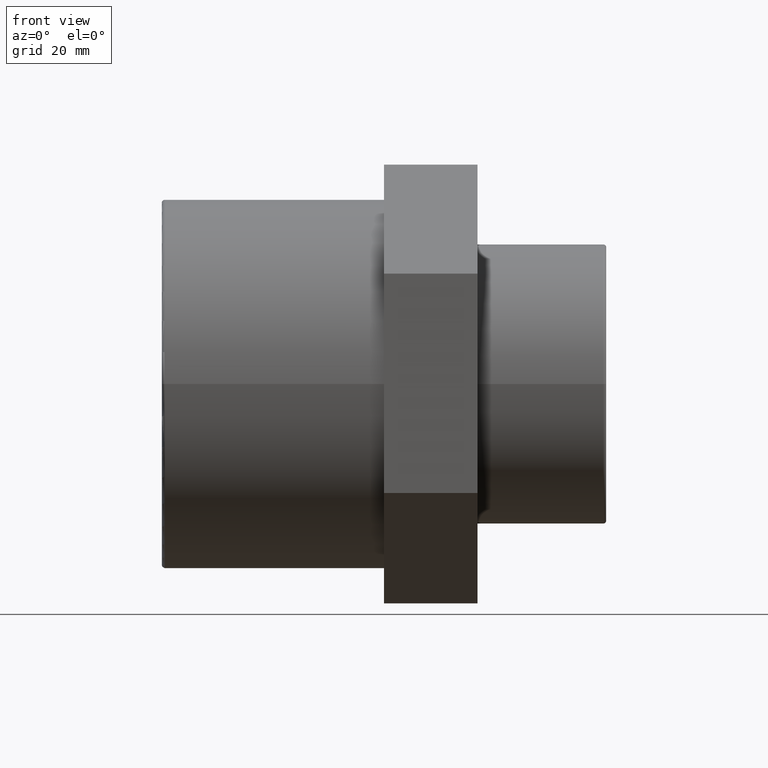
[diagram: clean part render]
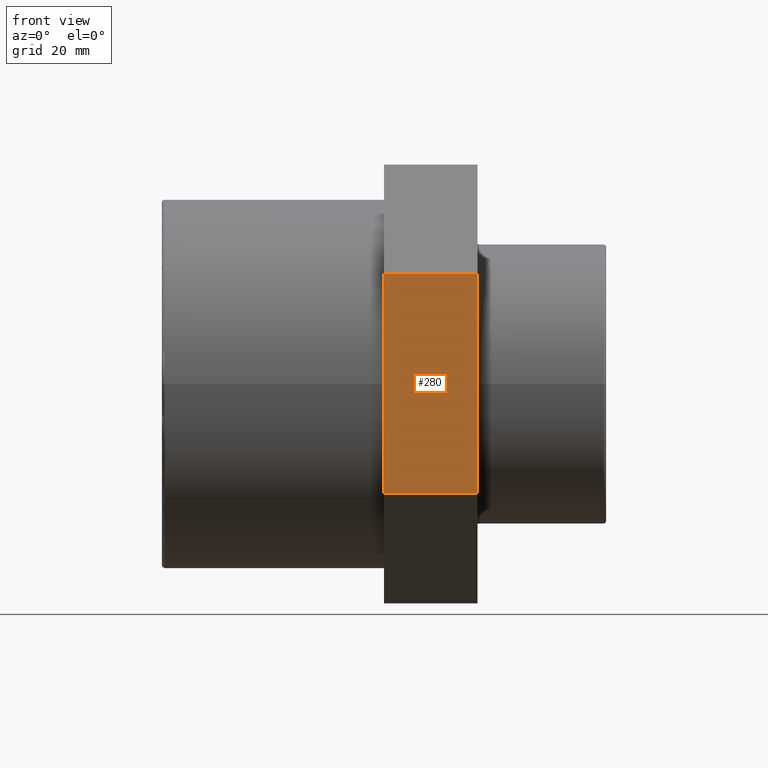
[diagram: same view with one face highlighted and labeled with its STEP entity id]
A machine part, front view. The second image highlights one B-rep face of the part: STEP entity #280.
In plain terms, the highlighted planar face has unit normal (0, -1, 0.0036).
Its self-contained STEP definition (entity closure, byte-faithful):
#53=FACE_OUTER_BOUND('',#74,.T.);
#74=EDGE_LOOP('',(#204,#205,#206,#207));
#110=LINE('',#432,#128);
#111=LINE('',#434,#129);
#112=LINE('',#436,#130);
#113=LINE('',#437,#131);
#128=VECTOR('',#342,37.5277674973257);
#129=VECTOR('',#343,16.);
#130=VECTOR('',#344,37.5277674973257);
#131=VECTOR('',#345,16.);
#146=VERTEX_POINT('',#430);
#147=VERTEX_POINT('',#431);
#148=VERTEX_POINT('',#433);
#149=VERTEX_POINT('',#435);
#172=EDGE_CURVE('',#146,#147,#110,.T.);
#173=EDGE_CURVE('',#148,#147,#111,.T.);
#174=EDGE_CURVE('',#148,#149,#112,.T.);
#175=EDGE_CURVE('',#149,#146,#113,.T.);
#204=ORIENTED_EDGE('',*,*,#172,.T.);
#205=ORIENTED_EDGE('',*,*,#173,.F.);
#206=ORIENTED_EDGE('',*,*,#174,.T.);
#207=ORIENTED_EDGE('',*,*,#175,.T.);
#268=PLANE('',#303);
#280=ADVANCED_FACE('',(#53),#268,.T.);
#303=AXIS2_PLACEMENT_3D('',#429,#340,#341);
#340=DIRECTION('center_axis',(7.40143835410541E-16,-0.999993450406666,0.00361927392861291));
#341=DIRECTION('ref_axis',(2.43778272755231E-18,-0.0036192739286129,-0.999993450406666));
#342=DIRECTION('',(-2.4377827275523E-18,0.00361927392861291,0.999993450406666));
#343=DIRECTION('',(1.,7.40148683083422E-16,0.));
#344=DIRECTION('',(2.4377827275523E-18,-0.00361927392861291,-0.999993450406666));
#345=DIRECTION('',(1.,7.40148683083422E-16,0.));
#429=CARTESIAN_POINT('Origin',(4.08110749477625E-15,-32.4318755029656,18.8813872555348));
#430=CARTESIAN_POINT('',(16.,-32.5676987734677,-18.646134450175));
#431=CARTESIAN_POINT('',(16.,-32.4318755029656,18.8813872555348));
#432=CARTESIAN_POINT('',(16.,-32.4658313205911,9.49950682910738));
#433=CARTESIAN_POINT('',(4.08110749477625E-15,-32.4318755029656,18.8813872555348));
#434=CARTESIAN_POINT('',(4.08110749477625E-15,-32.4318755029656,18.8813872555348));
#435=CARTESIAN_POINT('',(4.17259203818483E-15,-32.5676987734677,-18.646134450175));
#436=CARTESIAN_POINT('',(4.08110749477625E-15,-32.4318755029656,18.8813872555348));
#437=CARTESIAN_POINT('',(4.17259203818483E-15,-32.5676987734677,-18.646134450175));